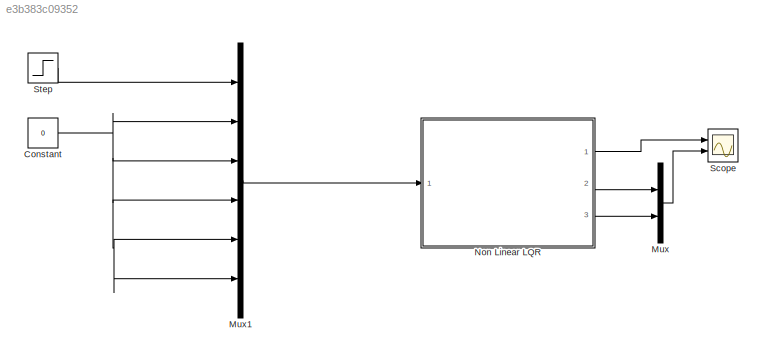
MODEL slx_e3b383c09352
KIND model
CONFIG AbsTol = auto
CONFIG EnableMultiTasking = off
CONFIG FixedStep = auto
CONFIG MaxStep = auto
CONFIG MinStep = auto
CONFIG RelTol = 1e-3
CONFIG SampleTimeConstraint = Unconstrained
CONFIG Solver = VariableStepAuto
CONFIG SolverName = VariableStepAuto
CONFIG StartTime = 0.0
CONFIG StopTime = 100
BLOCK [Constant] Constant
  Value = 0
BLOCK [Mux] Mux
  DisplayOption = bar
  Inputs = 2
  Ports = [2, 1]
BLOCK [Mux] Mux1
  DisplayOption = bar
  Inputs = 6
  Ports = [6, 1]
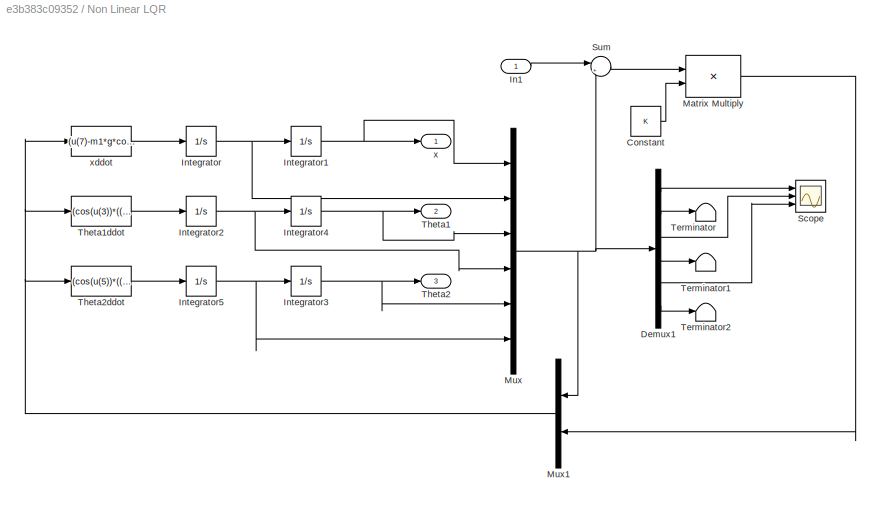
BLOCK [SubSystem] Non Linear LQR
  Ports = [1, 3]
  RequestExecContextInheritance = off
  Variant = off
BLOCK [Constant] Non Linear LQR/Constant
  Value = K
BLOCK [Demux] Non Linear LQR/Demux1
  DisplayOption = bar
  Outputs = 6
  Ports = [1, 6]
BLOCK [Inport] Non Linear LQR/In1
  IconDisplay = Port number
BLOCK [Integrator] Non Linear LQR/Integrator
  Ports = [1, 1]
BLOCK [Integrator] Non Linear LQR/Integrator1
  Ports = [1, 1]
BLOCK [Integrator] Non Linear LQR/Integrator2
  Ports = [1, 1]
BLOCK [Integrator] Non Linear LQR/Integrator3
  Ports = [1, 1]
BLOCK [Integrator] Non Linear LQR/Integrator4
  Ports = [1, 1]
BLOCK [Integrator] Non Linear LQR/Integrator5
  Ports = [1, 1]
BLOCK [Product] Non Linear LQR/Matrix Multiply
  InputSameDT = off
  Multiplication = Matrix(*)
  OutDataTypeStr = Inherit: Inherit via internal rule
  Ports = [2, 1]
  RndMeth = Floor
  SaturateOnIntegerOverflow = off
BLOCK [Mux] Non Linear LQR/Mux
  DisplayOption = bar
  Inputs = 6
  Ports = [6, 1]
BLOCK [Mux] Non Linear LQR/Mux1
  DisplayOption = bar
  Inputs = 2
  Ports = [2, 1]
BLOCK [Scope] Non Linear LQR/Scope
  NumInputPorts = 3
  Ports = [3]
  ScopeSpecificationString = Simulink.scopes.TimeScopeBlockCfg('CurrentConfiguration', extmgr.ConfigurationSet(extmgr.Configuration('Core','General UI',true),extmgr.Configuration('Core','Source UI',true),extmgr.Configuration('Sources','WiredSimulink',true),extmgr.Configuration('Visuals','Time Domain',true,'SerializedDisplays',{struct('MinYLimReal','-0.13686','MaxYLimReal','1.18651','YLabelReal','','MinYLimMag','0.00000','MaxY...<+1350ch>
BLOCK [Sum] Non Linear LQR/Sum
  IconShape = round
  InputSameDT = off
  Inputs = |+-
  OutDataTypeStr = Inherit: Inherit via internal rule
  Ports = [2, 1]
  SaturateOnIntegerOverflow = off
BLOCK [Terminator] Non Linear LQR/Terminator
BLOCK [Terminator] Non Linear LQR/Terminator1
BLOCK [Terminator] Non Linear LQR/Terminator2
BLOCK [Outport] Non Linear LQR/Theta1
  IconDisplay = Port number
  Port = 2
BLOCK [Fcn] Non Linear LQR/Theta1ddot
  Expr = (cos(u(3))*((u(7)-m1*g*cos(u(3))*sin(u(3))-m2*g*cos(u(5))*sin(u(5))-m1*l1*sin(u(3))*u(4)^2-m2*l2*sin(u(5))*u(6)^2)/(M+m1*sin(u(3))^2+m2*sin(u(5))^2))-g*sin(u(3)))/l1
BLOCK [Outport] Non Linear LQR/Theta2
  IconDisplay = Port number
  Port = 3
BLOCK [Fcn] Non Linear LQR/Theta2ddot 
  Expr = (cos(u(5))*((u(7)-m1*g*cos(u(3))*sin(u(3))-m2*g*cos(u(5))*sin(u(5))-m1*l1*sin(u(3))*u(4)^2-m2*l2*sin(u(5))*u(6)^2)/(M+m1*sin(u(3))^2+m2*sin(u(5))^2))-g*sin(u(5)))/l2
BLOCK [Outport] Non Linear LQR/x 
  IconDisplay = Port number
BLOCK [Fcn] Non Linear LQR/xddot 
  Expr = (u(7)-m1*g*cos(u(3))*sin(u(3))-m2*g*cos(u(5))*sin(u(5))-m1*l1*sin(u(3))*u(4)^2-m2*l2*sin(u(5))*u(6)^2)/(M+m1*sin(u(3))^2+m2*sin(u(5))^2)
BLOCK [Scope] Scope
  NumInputPorts = 2
  Ports = [2]
  ScopeSpecificationString = Simulink.scopes.TimeScopeBlockCfg('CurrentConfiguration', extmgr.ConfigurationSet(extmgr.Configuration('Core','General UI',true),extmgr.Configuration('Core','Source UI',true),extmgr.Configuration('Sources','WiredSimulink',true,'DataLoggingVariableName','ScopeData1'),extmgr.Configuration('Visuals','Time Domain',true,'SerializedDisplays',{struct('MinYLimReal','-0.13686','MaxYLimReal','1.18651','YLab...<+1413ch>
BLOCK [Step] Step
  SampleTime = 0
NET Constant:1 -> Mux1:2, Mux1:3, Mux1:4, Mux1:5, Mux1:6
LINE Mux1:1 -> Non Linear LQR:1
LINE Mux:1 -> Scope:2
LINE Non Linear LQR/Constant:1 -> Non Linear LQR/Matrix Multiply:2
LINE Non Linear LQR/Demux1:1 -> Non Linear LQR/Scope:1
LINE Non Linear LQR/Demux1:2 -> Non Linear LQR/Terminator:1
LINE Non Linear LQR/Demux1:3 -> Non Linear LQR/Scope:2
LINE Non Linear LQR/Demux1:4 -> Non Linear LQR/Terminator1:1
LINE Non Linear LQR/Demux1:5 -> Non Linear LQR/Scope:3
LINE Non Linear LQR/Demux1:6 -> Non Linear LQR/Terminator2:1
LINE Non Linear LQR/In1:1 -> Non Linear LQR/Sum:1
NET Non Linear LQR/Integrator1:1 -> Non Linear LQR/Mux:1, Non Linear LQR/x :1
NET Non Linear LQR/Integrator2:1 -> Non Linear LQR/Integrator4:1, Non Linear LQR/Mux:4
NET Non Linear LQR/Integrator3:1 -> Non Linear LQR/Mux:5, Non Linear LQR/Theta2:1
NET Non Linear LQR/Integrator4:1 -> Non Linear LQR/Mux:3, Non Linear LQR/Theta1:1
NET Non Linear LQR/Integrator5:1 -> Non Linear LQR/Integrator3:1, Non Linear LQR/Mux:6
NET Non Linear LQR/Integrator:1 -> Non Linear LQR/Integrator1:1, Non Linear LQR/Mux:2
LINE Non Linear LQR/Matrix Multiply:1 -> Non Linear LQR/Mux1:2
NET Non Linear LQR/Mux1:1 -> Non Linear LQR/Theta1ddot:1, Non Linear LQR/Theta2ddot :1, Non Linear LQR/xddot :1
NET Non Linear LQR/Mux:1 -> Non Linear LQR/Demux1:1, Non Linear LQR/Mux1:1, Non Linear LQR/Sum:2
LINE Non Linear LQR/Sum:1 -> Non Linear LQR/Matrix Multiply:1
LINE Non Linear LQR/Theta1ddot:1 -> Non Linear LQR/Integrator2:1
LINE Non Linear LQR/Theta2ddot :1 -> Non Linear LQR/Integrator5:1
LINE Non Linear LQR/xddot :1 -> Non Linear LQR/Integrator:1
LINE Non Linear LQR:1 -> Scope:1
LINE Non Linear LQR:2 -> Mux:1
LINE Non Linear LQR:3 -> Mux:2
LINE Step:1 -> Mux1:1
note: NET lines group one-source signal fan-out (src -> all destinations, sorted); 1:1 wires keep LINE
